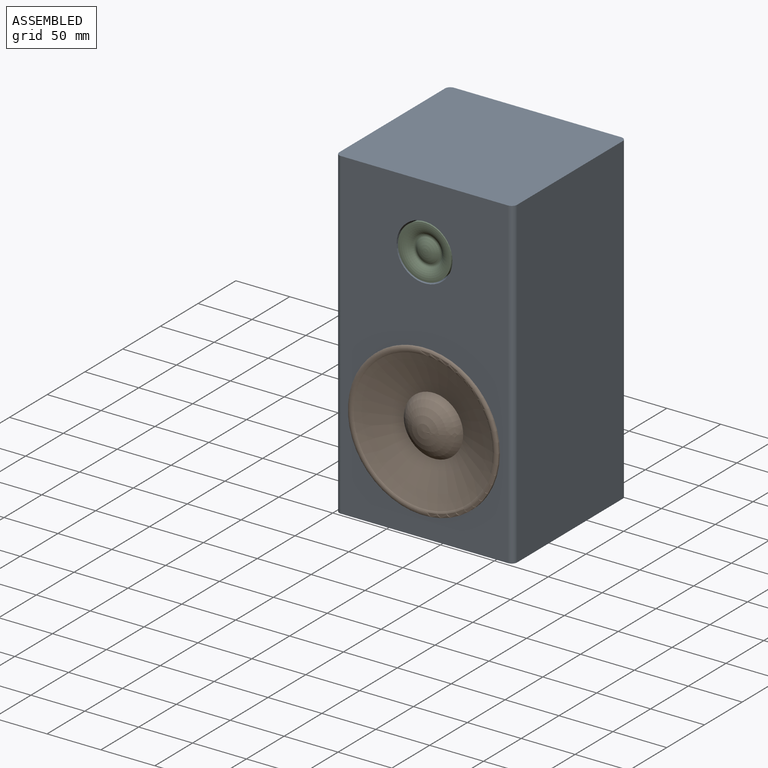
[diagram: assembled view]
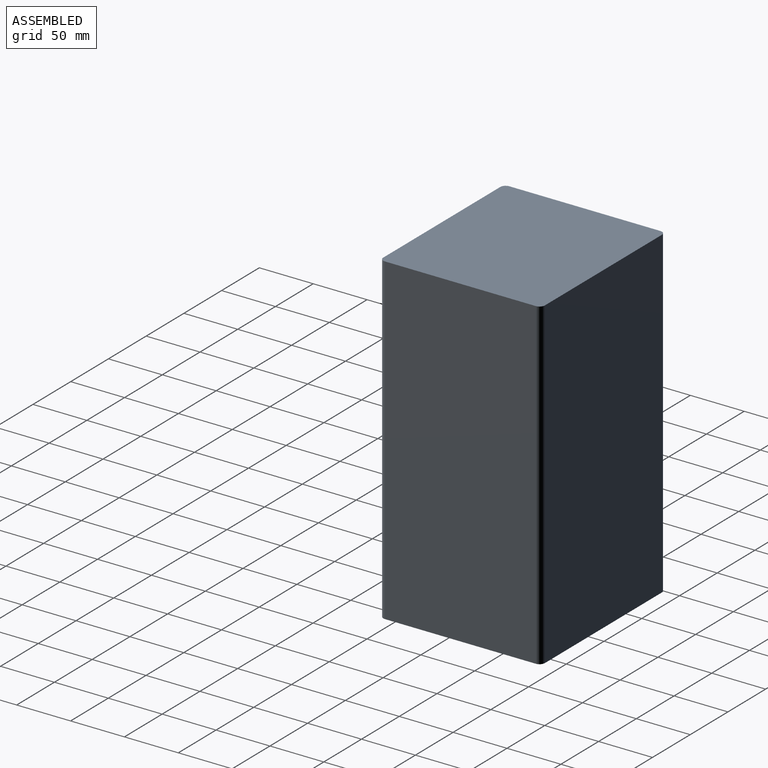
[diagram: assembled view, second angle]
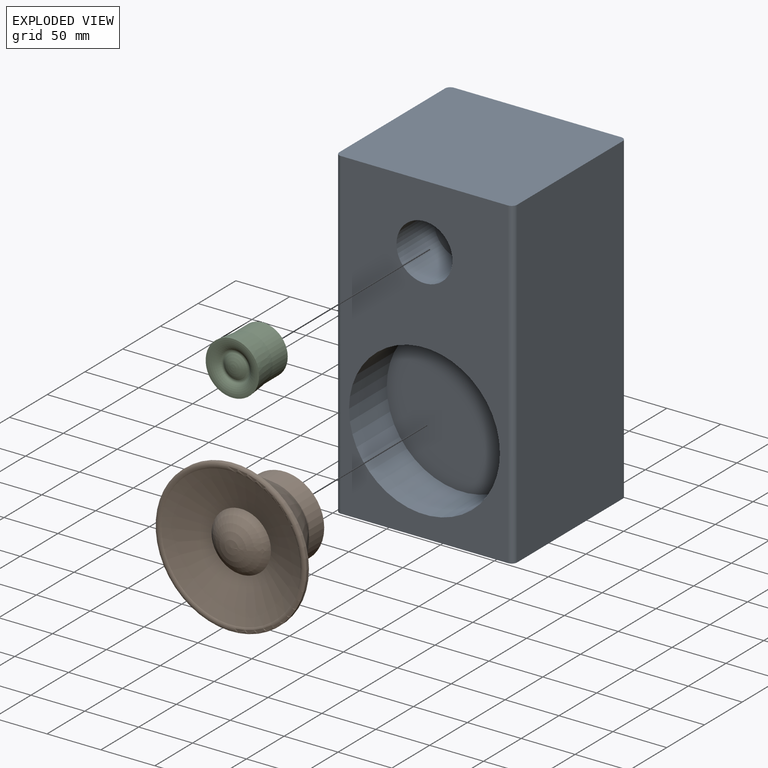
[diagram: exploded view]
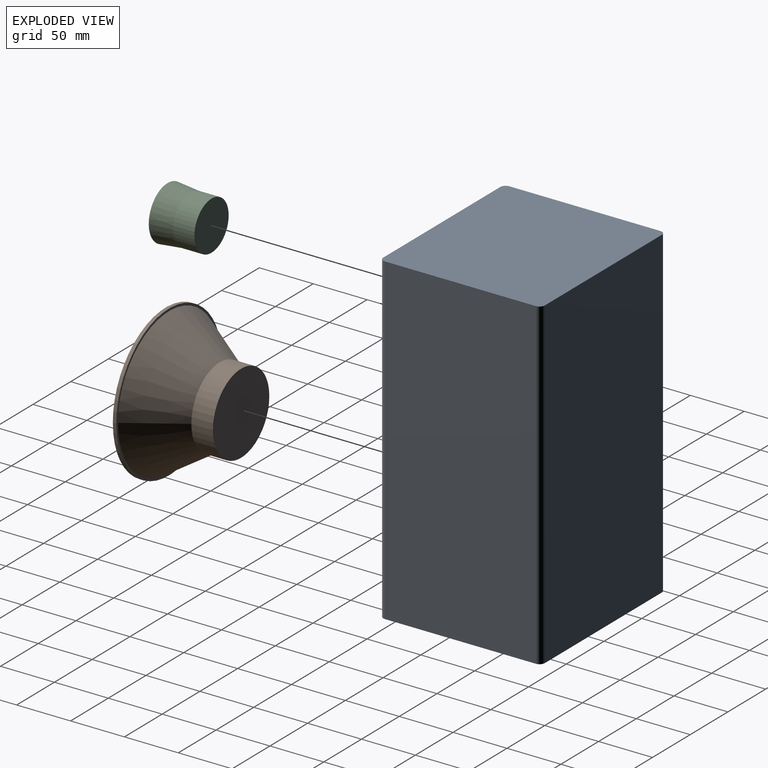
[diagram: exploded view, second angle]
ASSEMBLY  parts=3 mates=2
PART A: 14 faces, bbox 165x150x300 mm
  f0: plane 300x155mm, normal (0,-1,0), area 28982.5mm2, adj f4,f5,f6,f9,f10,f12
  f1: plane 300x140mm, normal (1,0,0), area 42000mm2, adj f4,f5,f6,f7
  f2: plane 300x155mm, normal (0,1,0), area 46500mm2, adj f4,f5,f7,f8
  f3: plane 300x140mm, normal (-1,0,0), area 42000mm2, adj f4,f5,f8,f9
  f4: plane 165x150mm, normal (0,0,1), area 24728.5mm2, adj f0,f1,f2,f3,f6,f7,f8,f9
  f5: plane 165x150mm, normal (0,0,-1), area 24728.5mm2, adj f0,f1,f2,f3,f6,f7,f8,f9
  f6: cylinder r=5mm len=300mm, axis (0,0,1), area 2356.2mm2, adj f0,f1,f4,f5
  f7: cylinder r=5mm len=300mm, axis (0,0,-1), area 2356.2mm2, adj f1,f2,f4,f5
  f8: cylinder r=5mm len=300mm, axis (0,0,1), area 2356.2mm2, adj f2,f3,f4,f5
  f9: cylinder r=5mm len=300mm, axis (0,0,-1), area 2356.2mm2, adj f0,f3,f4,f5
  f10: cylinder r=26mm len=52mm, axis (0,-1,0), area 8168.1mm2, adj f0,f11
  f11: plane 52x52mm, normal (0,-1,0), area 2123.7mm2, adj f10
  f12: cylinder r=70mm len=140mm, axis (0,-1,0), area 21991.1mm2, adj f0,f13
  f13: plane 140x140mm, normal (0,-1,0), area 15393.8mm2, adj f12
PART B: 8 faces, bbox 152.1x152.1x71 mm
  f0: cylinder r=37.4mm len=74.79mm, axis (0,0,1), area 4699.2mm2, adj f1,f7
  f1: plane 74.79x74.79mm, normal (0,0,-1), area 4393.2mm2, adj f0
  f2: sphere r=35mm, area 2955.7mm2, adj f3
  f3: cone r=27.57mm half-angle=70.1deg, axis (0,0,1), area 11414.4mm2, adj f2,f4
  f4: torus R=67.31mm, axis (0,0,1), area 2472.9mm2, adj f3,f5
  f5: cylinder r=70mm len=140mm, axis (0,0,1), area 1403.2mm2, adj f4,f6
  f6: plane 140x140mm, normal (0,0,-1), area 901.4mm2, adj f5,f7
  f7: cone r=37.4mm half-angle=33.1deg, axis (0,0,1), area 18489.2mm2, adj f0,f6
PART C: 6 faces, bbox 70.2x70.2x41 mm
  f0: torus R=23.11mm, axis (0,0,1), area 1439.6mm2, adj f1,f5
  f1: cone r=24.81mm half-angle=5.7deg, axis (0,0,1), area 3134.8mm2, adj f0,f2
  f2: cylinder r=22.73mm len=45.46mm, axis (0,0,1), area 2856.4mm2, adj f1,f3
  f3: plane 45.46x45.46mm, normal (0,0,-1), area 1623.2mm2, adj f2
  f4: sphere r=20mm, area 360.8mm2, adj f5
  f5: torus R=12.07mm, axis (0,0,1), area 292.1mm2, adj f0,f4
PLACE A t=(-209.71,17.66,55.6)mm
PLACE B rot(axis=(1,0,0),90deg) t=(-209.71,-37.66,145.6)mm
PLACE C rot(axis=(1,0,0),90deg) t=(-209.71,-56.21,295.6)mm
MATE fastened C.f0 <-> A.f10  axis (0,-1,0) through (-209.71,-53.34,295.6)mm
MATE fastened B.f0 <-> A.f12  axis (0,-1,0) through (-209.71,-45.34,145.6)mm
